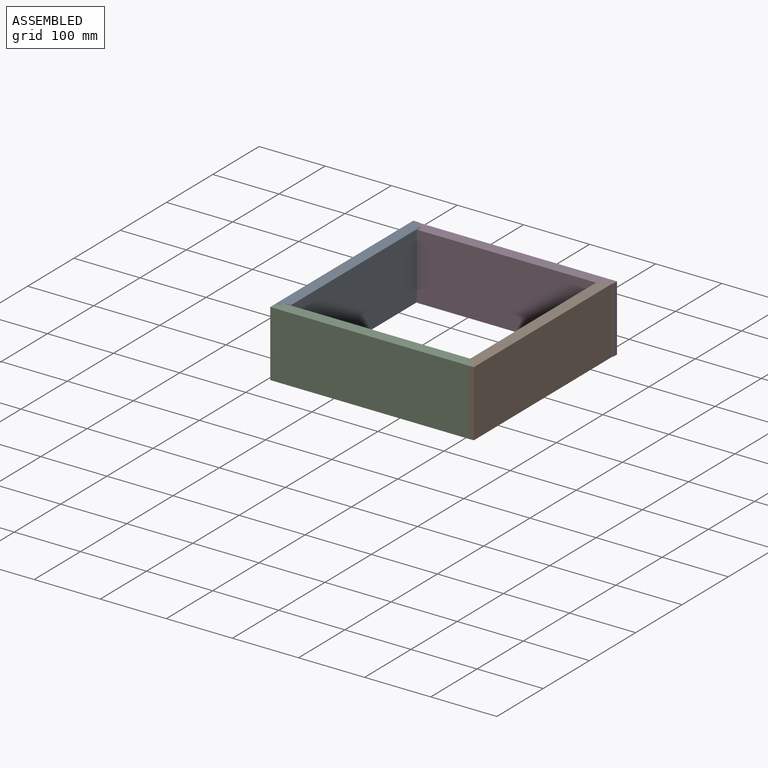
[diagram: assembled view]
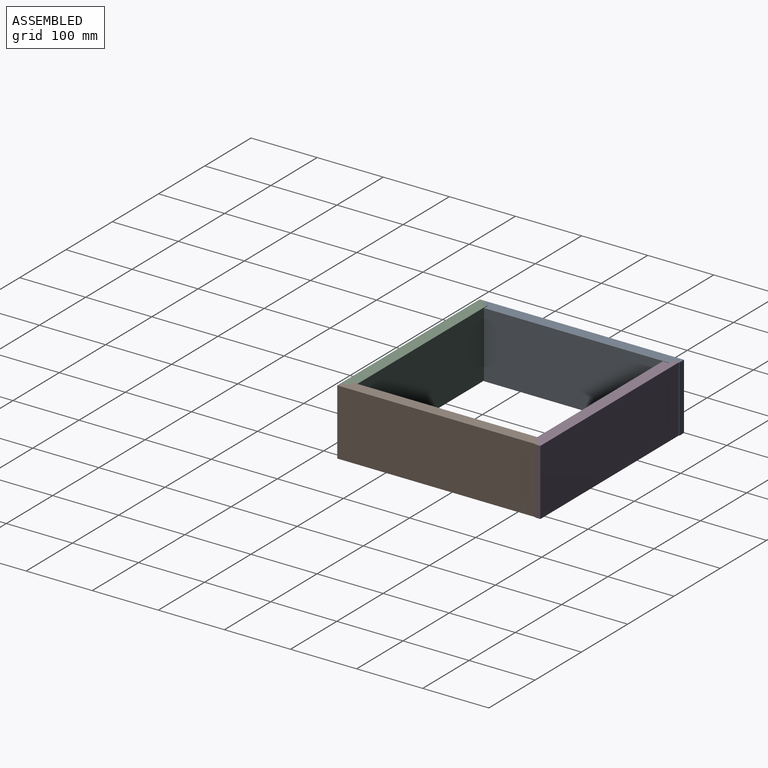
[diagram: assembled view, second angle]
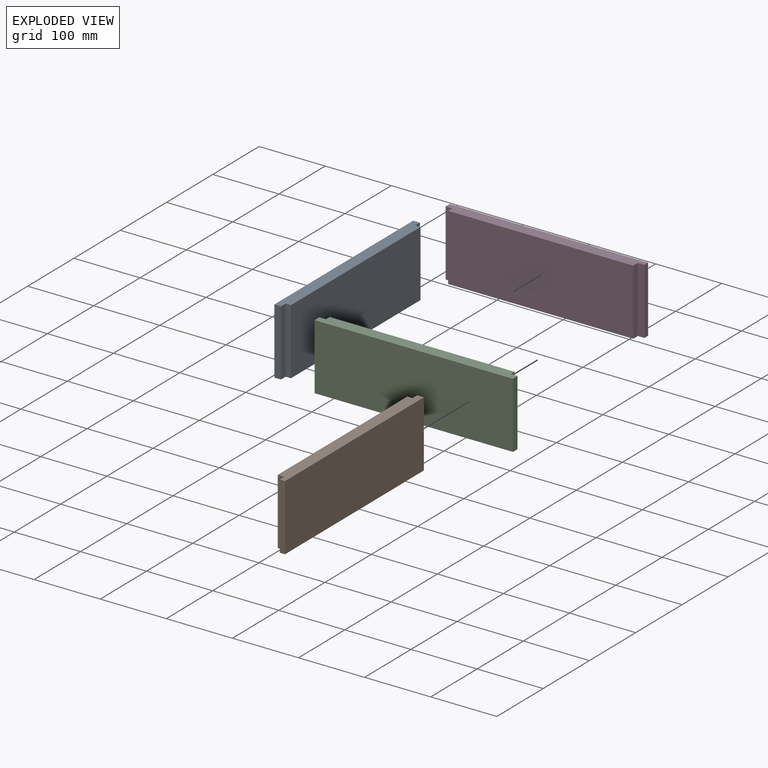
[diagram: exploded view]
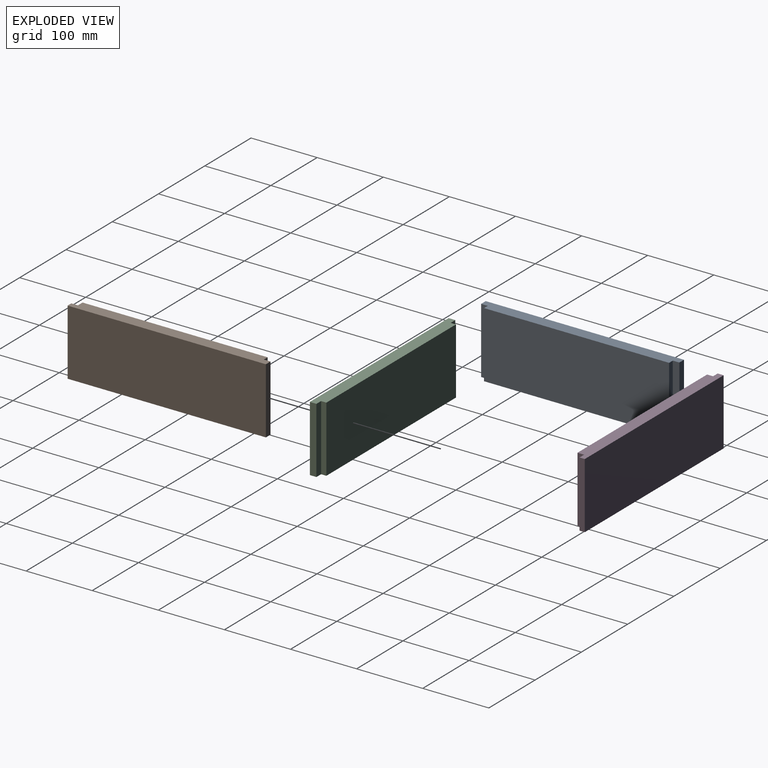
[diagram: exploded view, second angle]
ASSEMBLY  parts=4 mates=3
PART A: 10 faces, bbox 18x300x100 mm
  f0: plane 100x8mm, normal (0,1,0), area 800mm2, adj f1,f7,f8,f9
  f1: plane 100x10mm, normal (1,0,0), area 1000mm2, adj f0,f2,f8,f9
  f2: plane 100x10mm, normal (0,1,0), area 1000mm2, adj f1,f3,f8,f9
  f3: plane 300x100mm, normal (-1,0,0), area 30000mm2, adj f2,f4,f8,f9
  f4: plane 100x10mm, normal (0,-1,0), area 1000mm2, adj f3,f5,f8,f9
  f5: plane 100x10mm, normal (1,0,0), area 1000mm2, adj f4,f6,f8,f9
  f6: plane 100x8mm, normal (0,-1,0), area 800mm2, adj f5,f7,f8,f9
  f7: plane 280x100mm, normal (1,0,0), area 28000mm2, adj f0,f6,f8,f9
  f8: plane 300x18mm, normal (0,0,1), area 5240mm2, adj f0,f1,f2,f3,f4,f5,f6,f7
  f9: plane 300x18mm, normal (0,0,-1), area 5240mm2, adj f0,f1,f2,f3,f4,f5,f6,f7
PART B: 10 faces, bbox 18x300x100 mm
  f0: plane 100x10mm, normal (0,1,0), area 1000mm2, adj f1,f7,f8,f9
  f1: plane 100x10mm, normal (1,0,0), area 1000mm2, adj f0,f2,f8,f9
  f2: plane 100x8mm, normal (0,1,0), area 800mm2, adj f1,f3,f8,f9
  f3: plane 300x100mm, normal (-1,0,0), area 30000mm2, adj f2,f4,f8,f9
  f4: plane 100x10mm, normal (0,-1,0), area 1000mm2, adj f3,f5,f8,f9
  f5: plane 100x10mm, normal (1,0,0), area 1000mm2, adj f4,f6,f8,f9
  f6: plane 100x8mm, normal (0,-1,0), area 800mm2, adj f5,f7,f8,f9
  f7: plane 280x100mm, normal (1,0,0), area 28000mm2, adj f0,f6,f8,f9
  f8: plane 300x18mm, normal (0,0,1), area 5220mm2, adj f0,f1,f2,f3,f4,f5,f6,f7
  f9: plane 300x18mm, normal (0,0,-1), area 5220mm2, adj f0,f1,f2,f3,f4,f5,f6,f7
PART C: 10 faces, bbox 18x300x100 mm
  f0: plane 100x8mm, normal (0,1,0), area 800mm2, adj f1,f7,f8,f9
  f1: plane 100x10mm, normal (1,0,0), area 1000mm2, adj f0,f2,f8,f9
  f2: plane 100x10mm, normal (0,1,0), area 1000mm2, adj f1,f3,f8,f9
  f3: plane 300x100mm, normal (-1,0,0), area 30000mm2, adj f2,f4,f8,f9
  f4: plane 100x10mm, normal (0,-1,0), area 1000mm2, adj f3,f5,f8,f9
  f5: plane 100x10mm, normal (1,0,0), area 1000mm2, adj f4,f6,f8,f9
  f6: plane 100x8mm, normal (0,-1,0), area 800mm2, adj f5,f7,f8,f9
  f7: plane 280x100mm, normal (1,0,0), area 28000mm2, adj f0,f6,f8,f9
  f8: plane 300x18mm, normal (0,0,1), area 5240mm2, adj f0,f1,f2,f3,f4,f5,f6,f7
  f9: plane 300x18mm, normal (0,0,-1), area 5240mm2, adj f0,f1,f2,f3,f4,f5,f6,f7
PART D: 10 faces, bbox 18x300x100 mm
  f0: plane 100x9mm, normal (0,1,0), area 900mm2, adj f1,f7,f8,f9
  f1: plane 100x10mm, normal (1,0,0), area 1000mm2, adj f0,f2,f8,f9
  f2: plane 100x9mm, normal (0,1,0), area 900mm2, adj f1,f3,f8,f9
  f3: plane 300x100mm, normal (-1,0,0), area 30000mm2, adj f2,f4,f8,f9
  f4: plane 100x8mm, normal (0,-1,0), area 800mm2, adj f3,f5,f8,f9
  f5: plane 100x10mm, normal (1,0,0), area 1000mm2, adj f4,f6,f8,f9
  f6: plane 100x10mm, normal (0,-1,0), area 1000mm2, adj f5,f7,f8,f9
  f7: plane 280x100mm, normal (1,0,0), area 28000mm2, adj f0,f6,f8,f9
  f8: plane 300x18mm, normal (0,0,1), area 5210mm2, adj f0,f1,f2,f3,f4,f5,f6,f7
  f9: plane 300x18mm, normal (0,0,-1), area 5210mm2, adj f0,f1,f2,f3,f4,f5,f6,f7
PLACE A t=(-610.97,-183.65,-33.64)mm
PLACE B rot(axis=(0,0,-1),180deg) t=(-666.08,-629.76,-33.64)mm
PLACE C rot(axis=(-0.71,-0.71,0),180deg) t=(-555.45,-549.13,66.36)mm
PLACE D rot(axis=(-0.71,0.71,0),180deg) t=(-635.56,-53.27,66.36)mm
MATE fastened A.f0 <-> D.f1  axis (0,1,0) through (-773.46,-66.02,16.36)mm
MATE fastened B.f0 <-> C.f1  axis (0,-1,0) through (-492.46,-355.02,16.36)mm
MATE fastened A.f5 <-> C.f6  axis (1,0,0) through (-777.46,-351.02,16.36)mm
